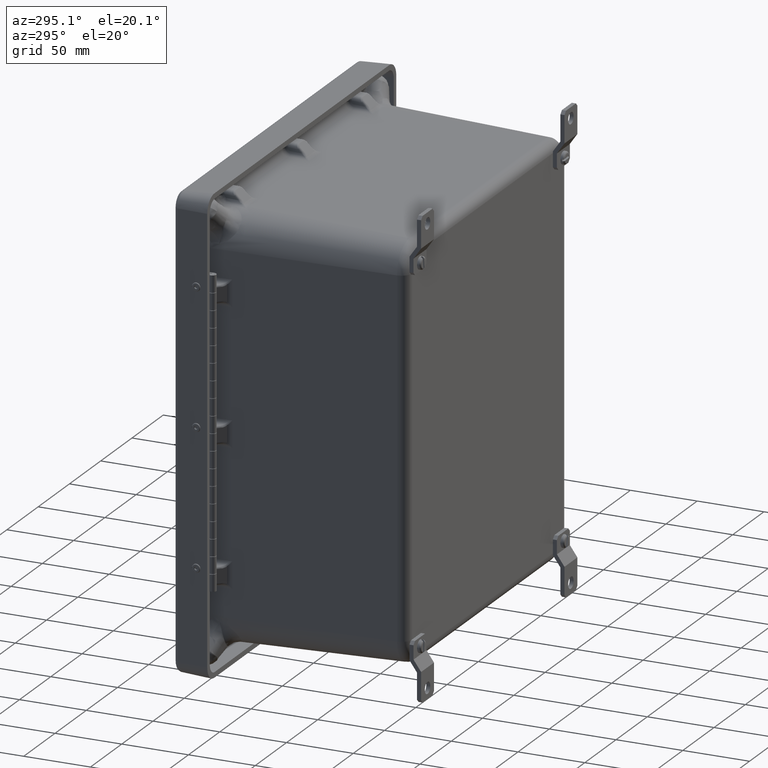
[diagram: clean part render]
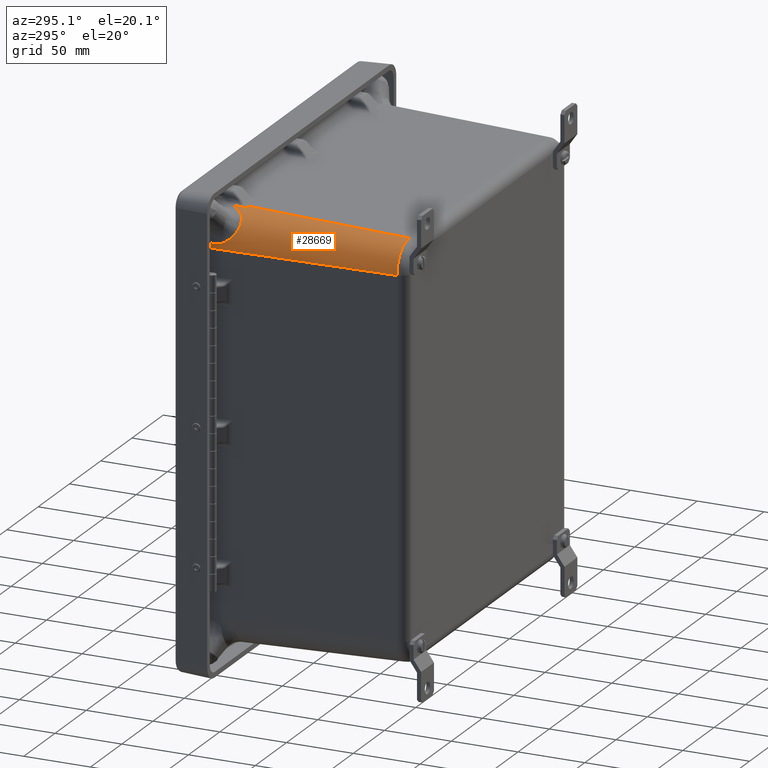
[diagram: same view with one face highlighted and labeled with its STEP entity id]
A machine part, auxiliary view. The second image highlights one B-rep face of the part: STEP entity #28669.
In plain terms, the highlighted conical surface has half-angle 2 deg.
Its self-contained STEP definition (entity closure, byte-faithful):
#64 = B_SPLINE_CURVE_WITH_KNOTS ( 'NONE', 3,
 ( #1633, #26542, #34924, #10019 ),
 .UNSPECIFIED., .F., .F.,
 ( 4, 4 ),
 ( 0.0000000000000000000, 0.002940697137952247200 ),
 .UNSPECIFIED. ) ;
#1124 = ORIENTED_EDGE ( 'NONE', *, *, #11076, .T. ) ;
#1315 = CARTESIAN_POINT ( 'NONE',  ( -5.234463957866168500, -0.6546490925266189600, 5.351375793687705800 ) ) ;
#1633 = CARTESIAN_POINT ( 'NONE',  ( -4.266925031075250500, -1.046567962692869000, 6.170910628505934500 ) ) ;
#1659 = CARTESIAN_POINT ( 'NONE',  ( -5.158882755130711000, -1.009025472939413000, 5.577330451804984400 ) ) ;
#1831 = CARTESIAN_POINT ( 'NONE',  ( -5.233145784509847700, -0.6713158258676849000, 5.356182181220435500 ) ) ;
#3623 = CARTESIAN_POINT ( 'NONE',  ( -4.674540211760000100, -1.041576321357692100, 6.080861116613747600 ) ) ;
#3706 = VECTOR ( 'NONE', #10654, 39.37007874015748900 ) ;
#4037 = CARTESIAN_POINT ( 'NONE',  ( -4.382313321162477000, -0.7295999050749455400, 6.175132681847603800 ) ) ;
#4943 = CARTESIAN_POINT ( 'NONE',  ( -4.410482437332472500, -0.4260945904174298100, 6.182075114111506200 ) ) ;
#5129 = CARTESIAN_POINT ( 'NONE',  ( -4.410972883745766500, -0.5022794283402581800, 6.179313896824637300 ) ) ;
#5850 = CARTESIAN_POINT ( 'NONE',  ( -5.183174901716068200, -0.9494324557474047600, 5.519524625295876100 ) ) ;
#6033 = CARTESIAN_POINT ( 'NONE',  ( -5.234463957866168500, -0.6546490925266189600, 5.351375793687705800 ) ) ;
#7017 = EDGE_CURVE ( 'NONE', #30938, #12047, #29780, .T. ) ;
#7627 = CARTESIAN_POINT ( 'NONE',  ( -4.433872235754624700, -0.7205323492002780900, 6.168035240314308600 ) ) ;
#7806 = CARTESIAN_POINT ( 'NONE',  ( -4.724795768058522900, -1.080395072055821700, 6.054463591347207800 ) ) ;
#7838 = DIRECTION ( 'NONE',  ( 0.0000000000000000000, 0.9993908270190957600, 0.03489949670250104600 ) ) ;
#8216 = CARTESIAN_POINT ( 'NONE',  ( -4.382407817209919000, -0.5272630343938922200, 6.182236902070272300 ) ) ;
#8292 = CARTESIAN_POINT ( 'NONE',  ( -5.237226661118803000, -0.5784642617927753200, 5.350892495017086900 ) ) ;
#9291 = CARTESIAN_POINT ( 'NONE',  ( -4.411943401434665900, -0.6546490925266189600, 6.173789357722438500 ) ) ;
#9860 = CARTESIAN_POINT ( 'NONE',  ( -5.035604922812460400, -1.140848687086377000, 5.783881324665062000 ) ) ;
#10019 = CARTESIAN_POINT ( 'NONE',  ( -4.382158966272668500, -1.055120458396479500, 6.163702558536912500 ) ) ;
#10022 = AXIS2_PLACEMENT_3D ( 'NONE', #19072, #48212, #23255 ) ;
#10043 = CARTESIAN_POINT ( 'NONE',  ( -5.204943178804132500, -0.8700294189353391400, 5.457298296871812200 ) ) ;
#10149 = VERTEX_POINT ( 'NONE', #25594 ) ;
#10554 = CARTESIAN_POINT ( 'NONE',  ( -4.410482437332472500, -0.4260945904174298100, 6.182075114111506200 ) ) ;
#10654 = DIRECTION ( 'NONE',  ( -0.03489949670250104600, 0.9993908270190957600, 0.0000000000000000000 ) ) ;
#11076 = EDGE_CURVE ( 'NONE', #14982, #51677, #41152, .T. ) ;
#11349 = EDGE_CURVE ( 'NONE', #51677, #19940, #64, .T. ) ;
#11407 = VERTEX_POINT ( 'NONE', #10554 ) ;
#11647 = CARTESIAN_POINT ( 'NONE',  ( -4.411943401434665900, -0.6546490925266189600, 6.173789357722438500 ) ) ;
#11809 = CARTESIAN_POINT ( 'NONE',  ( -4.464189697893698600, -0.7823198286397906600, 6.159991464850938800 ) ) ;
#11978 = CARTESIAN_POINT ( 'NONE',  ( -4.790685837974208100, -1.118616259290806200, 6.013501288285955800 ) ) ;
#12003 = DIRECTION ( 'NONE',  ( -0.0000000000000000000, 1.000000000000000000, 0.0000000000000000000 ) ) ;
#12047 = VERTEX_POINT ( 'NONE', #24245 ) ;
#12294 = DIRECTION ( 'NONE',  ( -0.0000000000000000000, -1.000000000000000000, -0.0000000000000000000 ) ) ;
#12932 = B_SPLINE_CURVE_WITH_KNOTS ( 'NONE', 3,
 ( #16359, #41316, #49673, #24744, #53843, #28917, #4037, #33138, #8216, #37298 ),
 .UNSPECIFIED., .F., .F.,
 ( 4, 3, 3, 4 ),
 ( -0.001914428559871525800, -4.336808689942017700E-019, 0.006358890000051077100, 0.01407267589083859200 ),
 .UNSPECIFIED. ) ;
#12939 = AXIS2_PLACEMENT_3D ( 'NONE', #36913, #12003, #41108 ) ;
#13154 = ORIENTED_EDGE ( 'NONE', *, *, #46799, .T. ) ;
#14011 = CARTESIAN_POINT ( 'NONE',  ( -5.064956142451587900, -1.125026220481401900, 5.743584007096902900 ) ) ;
#14014 = CARTESIAN_POINT ( 'NONE',  ( -4.935054379842746600, -1.156178953868237000, 5.896766516832729000 ) ) ;
#14192 = CARTESIAN_POINT ( 'NONE',  ( -5.215932271918882500, -0.8122384402485293100, 5.420527189445944100 ) ) ;
#14982 = VERTEX_POINT ( 'NONE', #30489 ) ;
#15108 = ORIENTED_EDGE ( 'NONE', *, *, #31324, .T. ) ;
#15407 = VERTEX_POINT ( 'NONE', #1315 ) ;
#15955 = CARTESIAN_POINT ( 'NONE',  ( -4.490044024333697900, -0.8269751886450171800, 6.152683390612037500 ) ) ;
#15992 = CARTESIAN_POINT ( 'NONE',  ( -4.266925031075250500, 0.004981867010965860200, 6.207631557718108300 ) ) ;
#16133 = CARTESIAN_POINT ( 'NONE',  ( -4.831103368851047200, -1.136154783192443500, 5.985048996766825400 ) ) ;
#16359 = CARTESIAN_POINT ( 'NONE',  ( -4.382158966272668500, -1.055120458396479500, 6.163702558536912500 ) ) ;
#16620 = CARTESIAN_POINT ( 'NONE',  ( -5.242749967190514200, -0.4260945904174298100, 5.349915479927441100 ) ) ;
#17584 = B_SPLINE_CURVE_WITH_KNOTS ( 'NONE', 3,
 ( #11647, #28343, #7627, #36727, #11809, #40915, #15955, #45113, #20104, #49272, #24315, #53424, #28509, #3623, #32739, #7806, #36891, #11978, #41085, #16133, #45280, #20284, #49444, #24505 ),
 .UNSPECIFIED., .F., .F.,
 ( 4, 2, 2, 2, 2, 2, 2, 2, 2, 2, 2, 4 ),
 ( -2.764305167477572800E-005, 0.002625567647988769100, 0.003952172997820547000, 0.005278778347652324100, 0.007931989047315846100, 0.01058519974697937100, 0.01191180509681113100, 0.01323841044664289200, 0.01589162114630638900, 0.01721822649613810600, 0.01854483184596982000, 0.02119804254563324000 ),
 .UNSPECIFIED. ) ;
#17885 = DIRECTION ( 'NONE',  ( -0.0000000000000000000, -1.000000000000000000, -0.0000000000000000000 ) ) ;
#18165 = CARTESIAN_POINT ( 'NONE',  ( -5.100022418372158300, -1.097293221852830000, 5.690119952894632700 ) ) ;
#18347 = CARTESIAN_POINT ( 'NONE',  ( -5.222811919535908800, -0.7670874811729546700, 5.395625523215271000 ) ) ;
#19072 = CARTESIAN_POINT ( 'NONE',  ( -4.266925031075250500, -0.4260945904174298100, 5.206231557718108900 ) ) ;
#19384 = CARTESIAN_POINT ( 'NONE',  ( -4.266925031075250500, 0.004981867010965841100, 5.206231557718108900 ) ) ;
#19940 = VERTEX_POINT ( 'NONE', #39086 ) ;
#19951 = CIRCLE ( 'NONE', #12939, 0.7977574772287524500 ) ;
#20041 = AXIS2_PLACEMENT_3D ( 'NONE', #42856, #17885, #47015 ) ;
#20104 = CARTESIAN_POINT ( 'NONE',  ( -4.537810226431120400, -0.8973756013608453800, 6.137795044356918700 ) ) ;
#20284 = CARTESIAN_POINT ( 'NONE',  ( -4.884087639265301200, -1.152196405772742500, 5.943623834592066200 ) ) ;
#22329 = CARTESIAN_POINT ( 'NONE',  ( -5.135217639004016700, -1.051700213153067100, 5.626388318839643100 ) ) ;
#22506 = CARTESIAN_POINT ( 'NONE',  ( -5.228522042350021200, -0.7202254177499942700, 5.373846547022410800 ) ) ;
#23074 = ORIENTED_EDGE ( 'NONE', *, *, #51955, .T. ) ;
#23255 = DIRECTION ( 'NONE',  ( 0.0000000000000000000, 0.0000000000000000000, 1.000000000000000000 ) ) ;
#23769 = CIRCLE ( 'NONE', #10022, 0.9863464783968238800 ) ;
#24245 = CARTESIAN_POINT ( 'NONE',  ( -4.957373292381665100, -1.156178953868237000, 5.874450500058761000 ) ) ;
#24315 = CARTESIAN_POINT ( 'NONE',  ( -4.602467208477913900, -0.9741561225935226900, 6.113737362209484200 ) ) ;
#24494 = LINE ( 'NONE', #27163, #3706 ) ;
#24505 = CARTESIAN_POINT ( 'NONE',  ( -4.935054379842746600, -1.156178953868237000, 5.896766516832729000 ) ) ;
#24744 = CARTESIAN_POINT ( 'NONE',  ( -4.382194969412815900, -0.9797956888527981100, 6.166347565248703000 ) ) ;
#25444 = EDGE_CURVE ( 'NONE', #37823, #45104, #24494, .T. ) ;
#25594 = CARTESIAN_POINT ( 'NONE',  ( -5.242749967190514200, -0.4260945904174298100, 5.349915479927441100 ) ) ;
#26358 = EDGE_CURVE ( 'NONE', #10149, #45104, #23769, .T. ) ;
#26533 = CARTESIAN_POINT ( 'NONE',  ( -5.253271509472074100, -0.4260945904174298100, 5.206231557718108900 ) ) ;
#26542 = CARTESIAN_POINT ( 'NONE',  ( -4.305698219585382300, -1.046567962692869200, 6.170910628505933600 ) ) ;
#26570 = CARTESIAN_POINT ( 'NONE',  ( -5.153326561143496000, -1.020258511170809600, 5.589450066858562500 ) ) ;
#26748 = CARTESIAN_POINT ( 'NONE',  ( -5.231704435088139400, -0.6877824731044873700, 5.361615793489615800 ) ) ;
#26969 = ORIENTED_EDGE ( 'NONE', *, *, #25444, .F. ) ;
#27163 = CARTESIAN_POINT ( 'NONE',  ( -5.268325031075249900, 0.004981867010965841100, 5.206231557718108900 ) ) ;
#27837 = VERTEX_POINT ( 'NONE', #38611 ) ;
#27904 = CARTESIAN_POINT ( 'NONE',  ( -5.064682508304002800, -5.826576994238370900, 5.206231557718108900 ) ) ;
#28343 = CARTESIAN_POINT ( 'NONE',  ( -4.421169835604463700, -0.6881253439552550400, 6.171224417988992400 ) ) ;
#28509 = CARTESIAN_POINT ( 'NONE',  ( -4.650032162472301800, -1.020261895140734300, 6.092681100916556700 ) ) ;
#28669 = ADVANCED_FACE ( 'NONE', ( #34169 ), #42646, .T. ) ;
#28917 = CARTESIAN_POINT ( 'NONE',  ( -4.382274183682676800, -0.8129985036746310000, 6.172204419568009500 ) ) ;
#29780 = CIRCLE ( 'NONE', #31536, 0.9608513706312285000 ) ;
#30489 = CARTESIAN_POINT ( 'NONE',  ( -4.266925031075250500, -5.826576994238370900, 6.003989034946861200 ) ) ;
#30580 = CARTESIAN_POINT ( 'NONE',  ( -4.957373292381665100, -1.156178953868237000, 5.874450500058761000 ) ) ;
#30748 = CIRCLE ( 'NONE', #20041, 0.9863464783968238800 ) ;
#30767 = CARTESIAN_POINT ( 'NONE',  ( -5.174388948018501500, -0.9741517229570286800, 5.541887456065782500 ) ) ;
#30938 = VERTEX_POINT ( 'NONE', #14014 ) ;
#30947 = CARTESIAN_POINT ( 'NONE',  ( -5.233829241501156900, -0.6629292025914561600, 5.353657803955600000 ) ) ;
#31324 = EDGE_CURVE ( 'NONE', #27837, #30938, #17584, .T. ) ;
#31536 = AXIS2_PLACEMENT_3D ( 'NONE', #37211, #12294, #41406 ) ;
#32739 = CARTESIAN_POINT ( 'NONE',  ( -4.686972367358595000, -1.051702846875267400, 6.074577002182108400 ) ) ;
#33138 = CARTESIAN_POINT ( 'NONE',  ( -4.382360797709401900, -0.6284314726626232300, 6.178684872285966600 ) ) ;
#33427 = EDGE_CURVE ( 'NONE', #19940, #50563, #12932, .T. ) ;
#34169 = FACE_OUTER_BOUND ( 'NONE', #50288, .T. ) ;
#34201 = CARTESIAN_POINT ( 'NONE',  ( -4.411459885402172700, -0.5784642622463289600, 6.176551976777725300 ) ) ;
#34415 = ORIENTED_EDGE ( 'NONE', *, *, #42328, .T. ) ;
#34742 = B_SPLINE_CURVE_WITH_KNOTS ( 'NONE', 3,
 ( #4943, #5129, #34201, #9291 ),
 .UNSPECIFIED., .F., .F.,
 ( 4, 4 ),
 ( 0.0000000000000000000, 0.005809216407752519100 ),
 .UNSPECIFIED. ) ;
#34756 = CARTESIAN_POINT ( 'NONE',  ( -5.004237842268415700, -1.152196296357241200, 5.823489130279630100 ) ) ;
#34924 = CARTESIAN_POINT ( 'NONE',  ( -4.344105619940299900, -1.049449494181669900, 6.168481833700751900 ) ) ;
#34947 = CARTESIAN_POINT ( 'NONE',  ( -5.198454858092142100, -0.8973695741297134100, 5.477233240245109200 ) ) ;
#36139 = ORIENTED_EDGE ( 'NONE', *, *, #26358, .T. ) ;
#36727 = CARTESIAN_POINT ( 'NONE',  ( -4.456199184900268200, -0.7670962923367923300, 6.162141864568897500 ) ) ;
#36891 = CARTESIAN_POINT ( 'NONE',  ( -4.750707840732872000, -1.097294761022771000, 6.039390188583745100 ) ) ;
#36913 = CARTESIAN_POINT ( 'NONE',  ( -4.266925031075250500, -5.826576994238372700, 5.206231557718108900 ) ) ;
#37211 = CARTESIAN_POINT ( 'NONE',  ( -4.266925031075250500, -1.156178953868237400, 5.206231557718108900 ) ) ;
#37234 = EDGE_CURVE ( 'NONE', #11407, #27837, #34742, .T. ) ;
#37298 = CARTESIAN_POINT ( 'NONE',  ( -4.382454392615436200, -0.4260945904174298100, 6.185788775070893300 ) ) ;
#37383 = CARTESIAN_POINT ( 'NONE',  ( -5.234463957866168500, -0.6546490925266189600, 5.351375793687705800 ) ) ;
#37823 = VERTEX_POINT ( 'NONE', #27904 ) ;
#37871 = EDGE_CURVE ( 'NONE', #15407, #10149, #46076, .T. ) ;
#38375 = B_SPLINE_CURVE_WITH_KNOTS ( 'NONE', 3,
 ( #30580, #51288, #34756, #9860, #38944, #14011, #43139, #18165, #47300, #22329, #51468, #26570, #1659, #30767, #5850, #34947, #10043, #39121, #14192, #43324, #18347, #47483, #22506, #51650, #26748, #1831, #30947, #6033 ),
 .UNSPECIFIED., .F., .F.,
 ( 4, 2, 2, 2, 2, 2, 2, 2, 2, 2, 2, 2, 2, 4 ),
 ( 0.0000000000000000000, 0.002625010406362125900, 0.003937515609543220500, 0.005250020812724315100, 0.007875031219086402900, 0.009187536422267463700, 0.01050004162544852400, 0.01312505203181072100, 0.01575006243817291700, 0.01706256764135401200, 0.01837507284453510800, 0.01968757804771620300, 0.02034383064930675400, 0.02100008325089730600 ),
 .UNSPECIFIED. ) ;
#38611 = CARTESIAN_POINT ( 'NONE',  ( -4.411943401434665900, -0.6546490925266189600, 6.173789357722438500 ) ) ;
#38944 = CARTESIAN_POINT ( 'NONE',  ( -5.045670361228799200, -1.136154232402481600, 5.770509463180488300 ) ) ;
#39086 = CARTESIAN_POINT ( 'NONE',  ( -4.382158966272668500, -1.055120458396479500, 6.163702558536912500 ) ) ;
#39121 = CARTESIAN_POINT ( 'NONE',  ( -5.213349228780395500, -0.8269676191103682000, 5.429468895570173500 ) ) ;
#40851 = ORIENTED_EDGE ( 'NONE', *, *, #33427, .T. ) ;
#40915 = CARTESIAN_POINT ( 'NONE',  ( -4.481101955305763200, -0.8122463237167485400, 6.155265314604174700 ) ) ;
#41085 = CARTESIAN_POINT ( 'NONE',  ( -4.804175775435288300, -1.125027063950718300, 6.004331102848479600 ) ) ;
#41108 = DIRECTION ( 'NONE',  ( 0.0000000000000000000, 0.0000000000000000000, -1.000000000000000000 ) ) ;
#41152 = LINE ( 'NONE', #15992, #52178 ) ;
#41316 = CARTESIAN_POINT ( 'NONE',  ( -4.382170996294098200, -1.030012202251835200, 6.164584237580459800 ) ) ;
#41406 = DIRECTION ( 'NONE',  ( 0.0000000000000000000, 0.0000000000000000000, -1.000000000000000000 ) ) ;
#41489 = AXIS2_PLACEMENT_3D ( 'NONE', #19384, #48526, #44360 ) ;
#41587 = CARTESIAN_POINT ( 'NONE',  ( -5.239988665479012700, -0.5022794278884281600, 5.350405710139063400 ) ) ;
#42328 = EDGE_CURVE ( 'NONE', #12047, #15407, #38375, .T. ) ;
#42646 = CONICAL_SURFACE ( 'NONE', #41489, 1.001399999999999800, 0.03490658503988666700 ) ;
#42856 = CARTESIAN_POINT ( 'NONE',  ( -4.266925031075250500, -0.4260945904174298100, 5.206231557718108900 ) ) ;
#43139 = CARTESIAN_POINT ( 'NONE',  ( -5.074128159719347100, -1.118615245644559100, 5.730095073560121000 ) ) ;
#43324 = CARTESIAN_POINT ( 'NONE',  ( -5.220660527727643400, -0.7823113344277399200, 5.403615670911327700 ) ) ;
#43821 = ORIENTED_EDGE ( 'NONE', *, *, #7017, .T. ) ;
#44360 = DIRECTION ( 'NONE',  ( 0.0000000000000000000, 0.0000000000000000000, 1.000000000000000000 ) ) ;
#45104 = VERTEX_POINT ( 'NONE', #26533 ) ;
#45113 = CARTESIAN_POINT ( 'NONE',  ( -4.517874510495007100, -0.8700360310775332500, 6.144280844337124000 ) ) ;
#45280 = CARTESIAN_POINT ( 'NONE',  ( -4.844476332265782200, -1.140849105587438600, 5.974985411738165600 ) ) ;
#45546 = ORIENTED_EDGE ( 'NONE', *, *, #11349, .T. ) ;
#46076 = B_SPLINE_CURVE_WITH_KNOTS ( 'NONE', 3,
 ( #37383, #8292, #41587, #16620 ),
 .UNSPECIFIED., .F., .F.,
 ( 4, 4 ),
 ( 0.1391324647407410100, 0.1449416803695521000 ),
 .UNSPECIFIED. ) ;
#46610 = CARTESIAN_POINT ( 'NONE',  ( -4.382454392615436200, -0.4260945904174298100, 6.185788775070893300 ) ) ;
#46799 = EDGE_CURVE ( 'NONE', #37823, #14982, #19951, .T. ) ;
#47015 = DIRECTION ( 'NONE',  ( 1.661798193736863300E-015, 0.0000000000000000000, 1.000000000000000000 ) ) ;
#47300 = CARTESIAN_POINT ( 'NONE',  ( -5.115099255564458300, -1.080393125173286600, 5.664209533136728100 ) ) ;
#47483 = CARTESIAN_POINT ( 'NONE',  ( -5.226742677584255100, -0.7360441830142860900, 5.380741644490137300 ) ) ;
#48212 = DIRECTION ( 'NONE',  ( -0.0000000000000000000, -1.000000000000000000, -0.0000000000000000000 ) ) ;
#48526 = DIRECTION ( 'NONE',  ( 0.0000000000000000000, 1.000000000000000000, 0.0000000000000000000 ) ) ;
#49272 = CARTESIAN_POINT ( 'NONE',  ( -4.580103381893317200, -0.9494373762147053600, 6.122520461919667600 ) ) ;
#49444 = CARTESIAN_POINT ( 'NONE',  ( -4.909904766319678900, -1.156178953868237700, 5.921100107309403200 ) ) ;
#49673 = CARTESIAN_POINT ( 'NONE',  ( -4.382182997271028700, -1.004903945736479500, 6.165465906463738000 ) ) ;
#50049 = ORIENTED_EDGE ( 'NONE', *, *, #37871, .T. ) ;
#50288 = EDGE_LOOP ( 'NONE', ( #26969, #13154, #1124, #45546, #40851, #23074, #52176, #15108, #43821, #34415, #50049, #36139 ) ) ;
#50563 = VERTEX_POINT ( 'NONE', #46610 ) ;
#51042 = CARTESIAN_POINT ( 'NONE',  ( -4.266925031075250500, -1.046567962692869000, 6.170910628505934500 ) ) ;
#51288 = CARTESIAN_POINT ( 'NONE',  ( -4.981710480389321700, -1.156178953868237200, 5.849303698493824500 ) ) ;
#51468 = CARTESIAN_POINT ( 'NONE',  ( -5.141503380816255100, -1.041573445985205100, 5.613956842714504300 ) ) ;
#51650 = CARTESIAN_POINT ( 'NONE',  ( -5.230941494857619400, -0.6959492142975045600, 5.364537909148762800 ) ) ;
#51677 = VERTEX_POINT ( 'NONE', #51042 ) ;
#51955 = EDGE_CURVE ( 'NONE', #50563, #11407, #30748, .T. ) ;
#52176 = ORIENTED_EDGE ( 'NONE', *, *, #37234, .T. ) ;
#52178 = VECTOR ( 'NONE', #7838, 39.37007874015748900 ) ;
#53424 = CARTESIAN_POINT ( 'NONE',  ( -4.637911956884219800, -1.009029131231655300, 6.098235718527140700 ) ) ;
#53843 = CARTESIAN_POINT ( 'NONE',  ( -4.382234735604298800, -0.8963970982958852100, 6.169276048112284800 ) ) ;